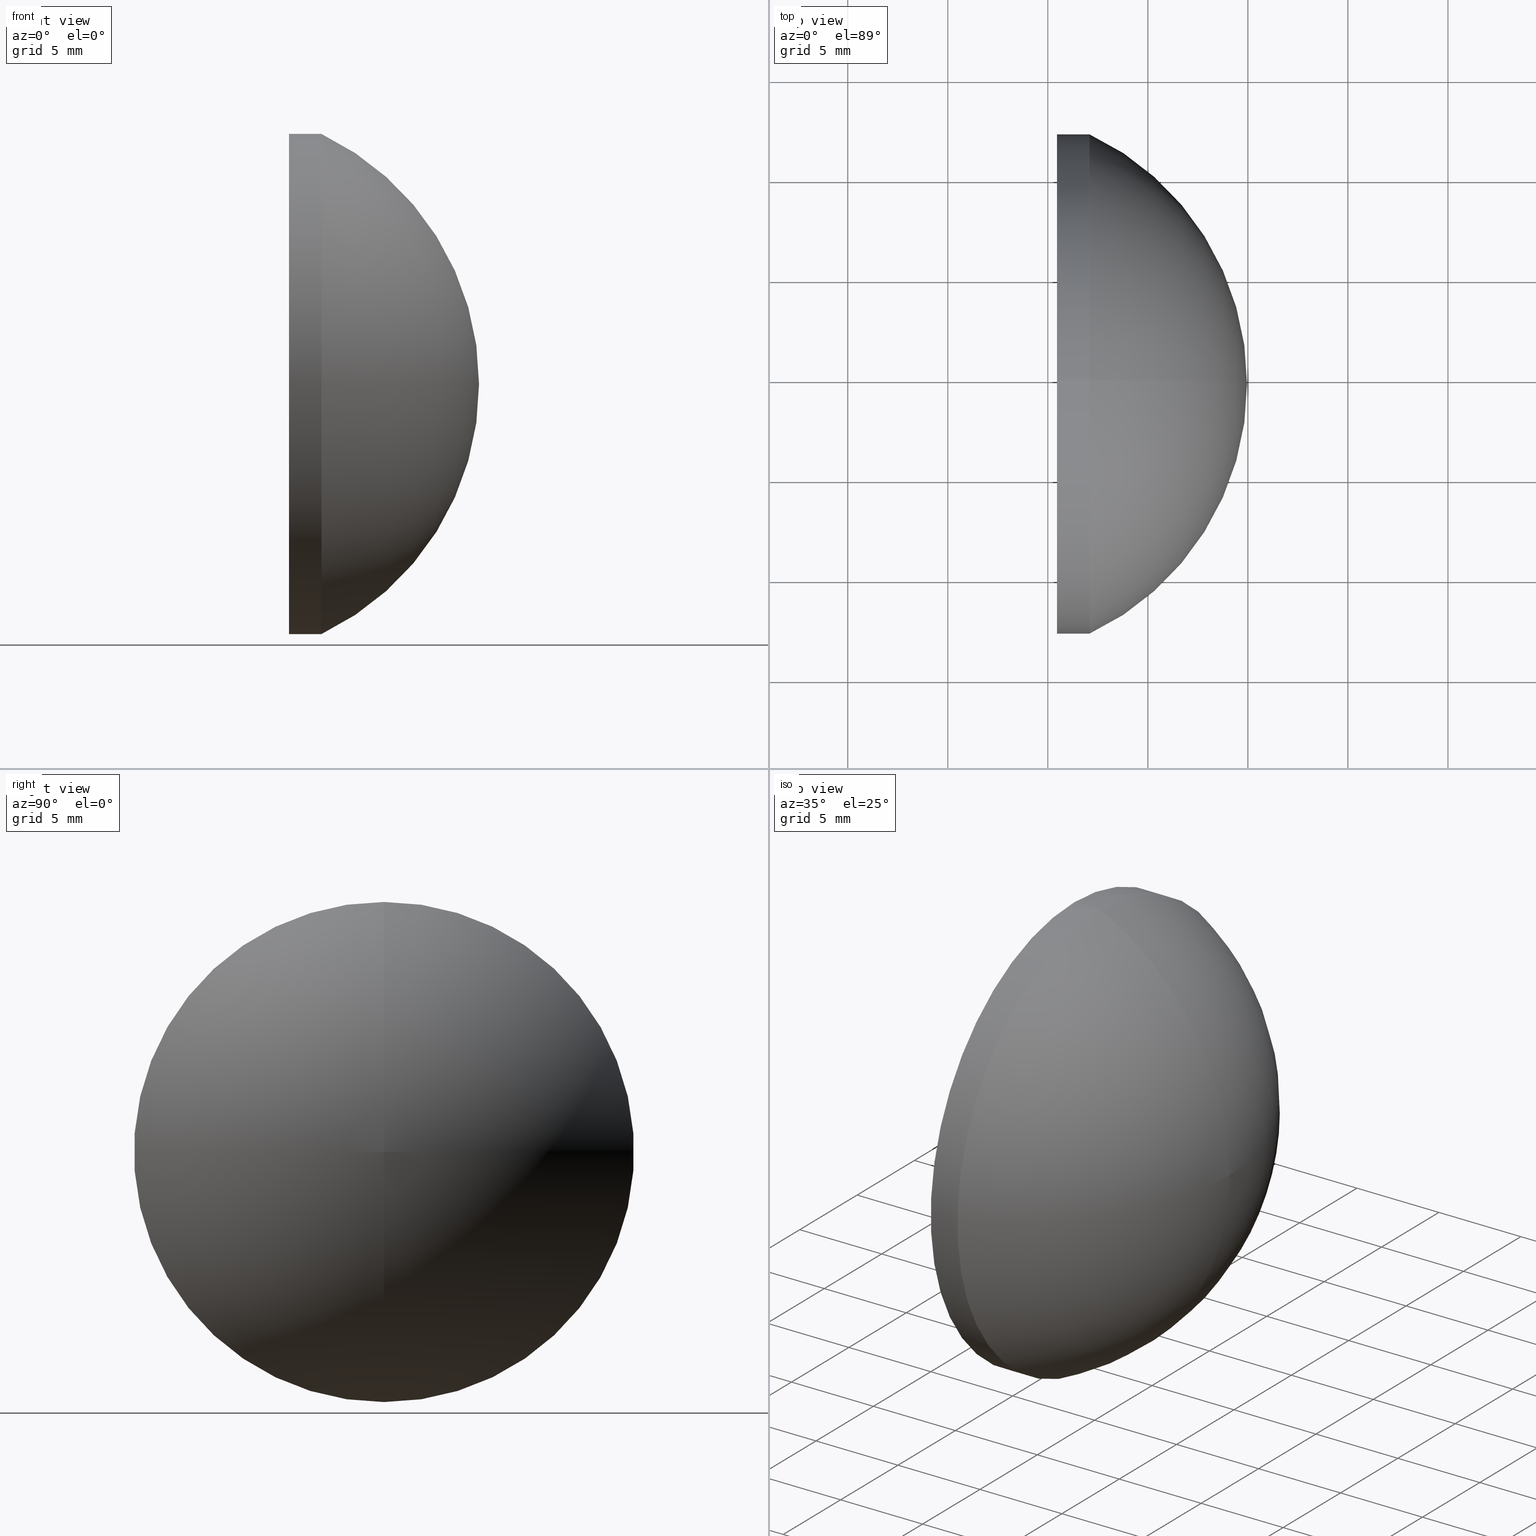
[diagram: canonical four-view strip — front | top / right | iso, engineering-drawing reading convention]
A machine part, canonical four-view strip (front | top / right | iso — engineering-drawing reading convention). The complete STEP part file that produces these views, byte-faithful:
ISO-10303-21;
HEADER;
FILE_DESCRIPTION (( 'STEP AP214' ),
    '1' );
FILE_NAME ('100123.STEP',
    '2019-05-14T06:32:05',
    ( '' ),
    ( '' ),
    'SwSTEP 2.0',
    'SolidWorks 2016',
    '' );
FILE_SCHEMA (( 'AUTOMOTIVE_DESIGN' ));
ENDSEC;

DATA;
#1 = DIRECTION ( 'NONE',  ( -1.000000000000000000, -0.0000000000000000000, -0.0000000000000000000 ) ) ;
#2 = CIRCLE ( 'NONE', #55, 12.50000000000001100 ) ;
#3 = CARTESIAN_POINT ( 'NONE',  ( 492.0819735120367100, 124.7029078037479600, 0.0000000000000000000 ) ) ;
#4 =( LENGTH_UNIT ( ) NAMED_UNIT ( * ) SI_UNIT ( .MILLI., .METRE. ) );
#5 = ADVANCED_FACE ( 'NONE', ( #67 ), #132, .T. ) ;
#6 = DIRECTION ( 'NONE',  ( 0.0000000000000000000, 0.0000000000000000000, 1.000000000000000000 ) ) ;
#7 = ORIENTED_EDGE ( 'NONE', *, *, #161, .F. ) ;
#8 = FACE_OUTER_BOUND ( 'NONE', #122, .T. ) ;
#9 = DIRECTION ( 'NONE',  ( -1.000000000000000000, -0.0000000000000000000, -0.0000000000000000000 ) ) ;
#10 = ORIENTED_EDGE ( 'NONE', *, *, #88, .T. ) ;
#11 = APPLICATION_CONTEXT ( 'automotive_design' ) ;
#12 = CLOSED_SHELL ( 'NONE', ( #157, #141, #95, #5, #71 ) ) ;
#13 = STYLED_ITEM ( 'NONE', ( #28 ), #118 ) ;
#14 = ORIENTED_EDGE ( 'NONE', *, *, #134, .F. ) ;
#15 = COLOUR_RGB ( '',1.000000000000000000, 1.000000000000000000, 1.000000000000000000 ) ;
#16 = PRODUCT_DEFINITION_FORMATION_WITH_SPECIFIED_SOURCE ( '�κ�', '', #66, .NOT_KNOWN. ) ;
#17 = CYLINDRICAL_SURFACE ( 'NONE', #116, 12.50000000000001100 ) ;
#18 = AXIS2_PLACEMENT_3D ( 'NONE', #121, #136, #149 ) ;
#19 = ORIENTED_EDGE ( 'NONE', *, *, #100, .F. ) ;
#20 = MECHANICAL_DESIGN_GEOMETRIC_PRESENTATION_REPRESENTATION (  '', ( #13 ), #110 ) ;
#21 = CARTESIAN_POINT ( 'NONE',  ( 490.4569735120367100, 124.7029078037479600, 12.50000000000001100 ) ) ;
#22 = DIRECTION ( 'NONE',  ( 0.0000000000000000000, 0.0000000000000000000, 1.000000000000000000 ) ) ;
#23 = FILL_AREA_STYLE ('',( #152 ) ) ;
#24 = CIRCLE ( 'NONE', #27, 12.50000000000001100 ) ;
#25 = DIRECTION ( 'NONE',  ( -1.000000000000000000, -0.0000000000000000000, -0.0000000000000000000 ) ) ;
#26 = FILL_AREA_STYLE ('',( #96 ) ) ;
#27 = AXIS2_PLACEMENT_3D ( 'NONE', #3, #51, #142 ) ;
#28 = PRESENTATION_STYLE_ASSIGNMENT (( #34 ) ) ;
#29 = UNCERTAINTY_MEASURE_WITH_UNIT (LENGTH_MEASURE( 1.000000000000000100E-005 ), #4, 'distance_accuracy_value', 'NONE');
#30 = ORIENTED_EDGE ( 'NONE', *, *, #88, .F. ) ;
#31 = TOROIDAL_SURFACE ( 'NONE', #53, 0.01775236966823634500, 13.82996794970070600 ) ;
#32 = DIRECTION ( 'NONE',  ( 0.0000000000000000000, 0.0000000000000000000, 1.000000000000000000 ) ) ;
#33 = CARTESIAN_POINT ( 'NONE',  ( 490.4569735120367100, 124.7029078037479600, 0.0000000000000000000 ) ) ;
#34 = SURFACE_STYLE_USAGE ( .BOTH. , #112 ) ;
#35 = DIRECTION ( 'NONE',  ( 0.0000000000000000000, 0.0000000000000000000, -1.000000000000000000 ) ) ;
#36 =( NAMED_UNIT ( * ) PLANE_ANGLE_UNIT ( ) SI_UNIT ( $, .RADIAN. ) );
#37 = LINE ( 'NONE', #61, #63 ) ;
#38 = APPLICATION_PROTOCOL_DEFINITION ( 'draft international standard', 'automotive_design', 1998, #98 ) ;
#39 = PRODUCT_RELATED_PRODUCT_CATEGORY ( 'part', '', ( #66 ) ) ;
#40 = APPLICATION_PROTOCOL_DEFINITION ( 'draft international standard', 'automotive_design', 1998, #11 ) ;
#41 = FACE_OUTER_BOUND ( 'NONE', #107, .T. ) ;
#42 = ORIENTED_EDGE ( 'NONE', *, *, #153, .T. ) ;
#43 = PRESENTATION_LAYER_ASSIGNMENT (  '', '', ( #13 ) ) ;
#44 = VERTEX_POINT ( 'NONE', #68 ) ;
#45 = DIRECTION ( 'NONE',  ( -1.000000000000000000, -0.0000000000000000000, -0.0000000000000000000 ) ) ;
#46 = ORIENTED_EDGE ( 'NONE', *, *, #161, .T. ) ;
#47 =( LENGTH_UNIT ( ) NAMED_UNIT ( * ) SI_UNIT ( .MILLI., .METRE. ) );
#48 = EDGE_CURVE ( 'NONE', #76, #44, #65, .T. ) ;
#49 = DIRECTION ( 'NONE',  ( -1.000000000000000000, -0.0000000000000000000, -0.0000000000000000000 ) ) ;
#50 = DIRECTION ( 'NONE',  ( 0.0000000000000000000, 0.0000000000000000000, 1.000000000000000000 ) ) ;
#51 = DIRECTION ( 'NONE',  ( -1.000000000000000000, -0.0000000000000000000, -0.0000000000000000000 ) ) ;
#52 =( NAMED_UNIT ( * ) SI_UNIT ( $, .STERADIAN. ) SOLID_ANGLE_UNIT ( ) );
#53 = AXIS2_PLACEMENT_3D ( 'NONE', #109, #45, #163 ) ;
#54 = CIRCLE ( 'NONE', #82, 12.50000000000001100 ) ;
#55 = AXIS2_PLACEMENT_3D ( 'NONE', #69, #1, #32 ) ;
#56 = PLANE ( 'NONE',  #18 ) ;
#57 =( GEOMETRIC_REPRESENTATION_CONTEXT ( 3 ) GLOBAL_UNCERTAINTY_ASSIGNED_CONTEXT ( ( #78 ) ) GLOBAL_UNIT_ASSIGNED_CONTEXT ( ( #158, #83, #114 ) ) REPRESENTATION_CONTEXT ( 'NONE', 'WORKASPACE' ) );
#58 = PRODUCT_DEFINITION_SHAPE ( 'NONE', 'NONE',  #164 ) ;
#59 = ADVANCED_BREP_SHAPE_REPRESENTATION ( '100123', ( #118, #87 ), #57 ) ;
#60 = CARTESIAN_POINT ( 'NONE',  ( 486.1270169559545600, 124.7029078037479600, 0.0000000000000000000 ) ) ;
#61 = CARTESIAN_POINT ( 'NONE',  ( 487.9520244924638100, 124.7029078037479600, -12.50000000000001100 ) ) ;
#62 = SURFACE_STYLE_FILL_AREA ( #23 ) ;
#63 = VECTOR ( 'NONE', #9, 1000.000000000000000 ) ;
#64 = PRESENTATION_LAYER_ASSIGNMENT (  '', '', ( #137 ) ) ;
#65 = CIRCLE ( 'NONE', #106, 13.82996794970070600 ) ;
#66 = PRODUCT ( '100123', '100123', '', ( #85 ) ) ;
#67 = FACE_OUTER_BOUND ( 'NONE', #97, .T. ) ;
#68 = CARTESIAN_POINT ( 'NONE',  ( 492.0819735120367100, 124.7029078037479600, -12.50000000000000900 ) ) ;
#69 = CARTESIAN_POINT ( 'NONE',  ( 492.0819735120367100, 124.7029078037479600, 0.0000000000000000000 ) ) ;
#70 = DIRECTION ( 'NONE',  ( -0.0000000000000000000, 1.000000000000000000, 1.224646799147353200E-016 ) ) ;
#71 = ADVANCED_FACE ( 'NONE', ( #8 ), #56, .F. ) ;
#72 = ORIENTED_EDGE ( 'NONE', *, *, #153, .F. ) ;
#73 = DIRECTION ( 'NONE',  ( 0.0000000000000000000, 0.0000000000000000000, 1.000000000000000000 ) ) ;
#74 = ORIENTED_EDGE ( 'NONE', *, *, #77, .F. ) ;
#75 = AXIS2_PLACEMENT_3D ( 'NONE', #60, #93, #22 ) ;
#76 = VERTEX_POINT ( 'NONE', #123 ) ;
#77 = EDGE_CURVE ( 'NONE', #103, #105, #147, .T. ) ;
#78 = UNCERTAINTY_MEASURE_WITH_UNIT (LENGTH_MEASURE( 1.000000000000000100E-005 ), #158, 'distance_accuracy_value', 'NONE');
#79 = ORIENTED_EDGE ( 'NONE', *, *, #100, .T. ) ;
#80 = CARTESIAN_POINT ( 'NONE',  ( 490.4569735120367100, 124.7029078037479600, -12.50000000000001100 ) ) ;
#81 = CARTESIAN_POINT ( 'NONE',  ( 0.0000000000000000000, 0.0000000000000000000, 0.0000000000000000000 ) ) ;
#82 = AXIS2_PLACEMENT_3D ( 'NONE', #117, #25, #115 ) ;
#83 =( NAMED_UNIT ( * ) PLANE_ANGLE_UNIT ( ) SI_UNIT ( $, .RADIAN. ) );
#84 = ORIENTED_EDGE ( 'NONE', *, *, #156, .F. ) ;
#85 = PRODUCT_CONTEXT ( 'NONE', #11, 'mechanical' ) ;
#86 = UNCERTAINTY_MEASURE_WITH_UNIT (LENGTH_MEASURE( 1.000000000000000100E-005 ), #47, 'distance_accuracy_value', 'NONE');
#87 = AXIS2_PLACEMENT_3D ( 'NONE', #81, #73, #119 ) ;
#88 = EDGE_CURVE ( 'NONE', #76, #101, #165, .T. ) ;
#89 = MECHANICAL_DESIGN_GEOMETRIC_PRESENTATION_REPRESENTATION (  '', ( #137 ), #104 ) ;
#90 =( NAMED_UNIT ( * ) PLANE_ANGLE_UNIT ( ) SI_UNIT ( $, .RADIAN. ) );
#91 = DIRECTION ( 'NONE',  ( 0.0000000000000000000, 0.0000000000000000000, 1.000000000000000000 ) ) ;
#92 = CARTESIAN_POINT ( 'NONE',  ( 492.0819735120367100, 124.7029078037479600, 12.50000000000000900 ) ) ;
#93 = DIRECTION ( 'NONE',  ( -1.000000000000000000, -0.0000000000000000000, -0.0000000000000000000 ) ) ;
#94 = FACE_OUTER_BOUND ( 'NONE', #120, .T. ) ;
#95 = ADVANCED_FACE ( 'NONE', ( #41 ), #31, .T. ) ;
#96 = FILL_AREA_STYLE_COLOUR ( '', #15 ) ;
#97 = EDGE_LOOP ( 'NONE', ( #19, #42, #46, #84 ) ) ;
#98 = APPLICATION_CONTEXT ( 'automotive_design' ) ;
#99 = CARTESIAN_POINT ( 'NONE',  ( 487.9520244924638100, 124.7029078037479600, 12.50000000000001100 ) ) ;
#100 = EDGE_CURVE ( 'NONE', #44, #105, #37, .T. ) ;
#101 = VERTEX_POINT ( 'NONE', #92 ) ;
#102 = SHAPE_DEFINITION_REPRESENTATION ( #58, #59 ) ;
#103 = VERTEX_POINT ( 'NONE', #21 ) ;
#104 =( GEOMETRIC_REPRESENTATION_CONTEXT ( 3 ) GLOBAL_UNCERTAINTY_ASSIGNED_CONTEXT ( ( #29 ) ) GLOBAL_UNIT_ASSIGNED_CONTEXT ( ( #4, #36, #52 ) ) REPRESENTATION_CONTEXT ( 'NONE', 'WORKASPACE' ) );
#105 = VERTEX_POINT ( 'NONE', #80 ) ;
#106 = AXIS2_PLACEMENT_3D ( 'NONE', #125, #70, #91 ) ;
#107 = EDGE_LOOP ( 'NONE', ( #146, #10, #72 ) ) ;
#108 =( NAMED_UNIT ( * ) SI_UNIT ( $, .STERADIAN. ) SOLID_ANGLE_UNIT ( ) );
#109 = CARTESIAN_POINT ( 'NONE',  ( 486.1270169559545600, 124.7029078037479600, 0.0000000000000000000 ) ) ;
#110 =( GEOMETRIC_REPRESENTATION_CONTEXT ( 3 ) GLOBAL_UNCERTAINTY_ASSIGNED_CONTEXT ( ( #86 ) ) GLOBAL_UNIT_ASSIGNED_CONTEXT ( ( #47, #90, #108 ) ) REPRESENTATION_CONTEXT ( 'NONE', 'WORKASPACE' ) );
#111 = ORIENTED_EDGE ( 'NONE', *, *, #77, .T. ) ;
#112 = SURFACE_SIDE_STYLE ('',( #62 ) ) ;
#113 = SURFACE_STYLE_FILL_AREA ( #26 ) ;
#114 =( NAMED_UNIT ( * ) SI_UNIT ( $, .STERADIAN. ) SOLID_ANGLE_UNIT ( ) );
#115 = DIRECTION ( 'NONE',  ( 0.0000000000000000000, 0.0000000000000000000, 1.000000000000000000 ) ) ;
#116 = AXIS2_PLACEMENT_3D ( 'NONE', #166, #138, #6 ) ;
#117 = CARTESIAN_POINT ( 'NONE',  ( 490.4569735120367100, 124.7029078037479600, 0.0000000000000000000 ) ) ;
#118 = MANIFOLD_SOLID_BREP ( '��ת2', #12 ) ;
#119 = DIRECTION ( 'NONE',  ( 1.000000000000000000, 0.0000000000000000000, 0.0000000000000000000 ) ) ;
#120 = EDGE_LOOP ( 'NONE', ( #30, #135, #14 ) ) ;
#121 = CARTESIAN_POINT ( 'NONE',  ( 490.4569735120367100, 124.7029078037479600, 0.0000000000000000000 ) ) ;
#122 = EDGE_LOOP ( 'NONE', ( #111, #143 ) ) ;
#123 = CARTESIAN_POINT ( 'NONE',  ( 499.9569735120367100, 124.7029078037479600, 0.0000000000000000000 ) ) ;
#124 = DIRECTION ( 'NONE',  ( 0.0000000000000000000, -1.000000000000000000, 0.0000000000000000000 ) ) ;
#125 = CARTESIAN_POINT ( 'NONE',  ( 486.1270169559545600, 124.7029078037479600, -0.01775236966823634500 ) ) ;
#126 = FACE_OUTER_BOUND ( 'NONE', #160, .T. ) ;
#127 = LINE ( 'NONE', #99, #129 ) ;
#128 = SURFACE_SIDE_STYLE ('',( #113 ) ) ;
#129 = VECTOR ( 'NONE', #144, 1000.000000000000000 ) ;
#130 = COLOUR_RGB ( '',1.000000000000000000, 1.000000000000000000, 1.000000000000000000 ) ;
#131 = AXIS2_PLACEMENT_3D ( 'NONE', #151, #154, #50 ) ;
#132 = CYLINDRICAL_SURFACE ( 'NONE', #131, 12.50000000000001100 ) ;
#133 = AXIS2_PLACEMENT_3D ( 'NONE', #140, #124, #35 ) ;
#134 = EDGE_CURVE ( 'NONE', #101, #44, #2, .T. ) ;
#135 = ORIENTED_EDGE ( 'NONE', *, *, #48, .T. ) ;
#136 = DIRECTION ( 'NONE',  ( 1.000000000000000000, 0.0000000000000000000, 0.0000000000000000000 ) ) ;
#137 = STYLED_ITEM ( 'NONE', ( #139 ), #59 ) ;
#138 = DIRECTION ( 'NONE',  ( -1.000000000000000000, -0.0000000000000000000, -0.0000000000000000000 ) ) ;
#139 = PRESENTATION_STYLE_ASSIGNMENT (( #159 ) ) ;
#140 = CARTESIAN_POINT ( 'NONE',  ( 486.1270169559545600, 124.7029078037479600, 0.01775236966823634500 ) ) ;
#141 = ADVANCED_FACE ( 'NONE', ( #94 ), #155, .T. ) ;
#142 = DIRECTION ( 'NONE',  ( 0.0000000000000000000, 0.0000000000000000000, 1.000000000000000000 ) ) ;
#143 = ORIENTED_EDGE ( 'NONE', *, *, #156, .T. ) ;
#144 = DIRECTION ( 'NONE',  ( -1.000000000000000000, -0.0000000000000000000, -0.0000000000000000000 ) ) ;
#145 = ORIENTED_EDGE ( 'NONE', *, *, #134, .T. ) ;
#146 = ORIENTED_EDGE ( 'NONE', *, *, #48, .F. ) ;
#147 = CIRCLE ( 'NONE', #162, 12.50000000000001100 ) ;
#148 = PRODUCT_DEFINITION_CONTEXT ( 'detailed design', #98, 'design' ) ;
#149 = DIRECTION ( 'NONE',  ( 0.0000000000000000000, 0.0000000000000000000, -1.000000000000000000 ) ) ;
#150 = DIRECTION ( 'NONE',  ( 0.0000000000000000000, 0.0000000000000000000, 1.000000000000000000 ) ) ;
#151 = CARTESIAN_POINT ( 'NONE',  ( 487.9520244924638100, 124.7029078037479600, 0.0000000000000000000 ) ) ;
#152 = FILL_AREA_STYLE_COLOUR ( '', #130 ) ;
#153 = EDGE_CURVE ( 'NONE', #44, #101, #24, .T. ) ;
#154 = DIRECTION ( 'NONE',  ( -1.000000000000000000, -0.0000000000000000000, -0.0000000000000000000 ) ) ;
#155 = TOROIDAL_SURFACE ( 'NONE', #75, 0.01775236966823634500, 13.82996794970070600 ) ;
#156 = EDGE_CURVE ( 'NONE', #105, #103, #54, .T. ) ;
#157 = ADVANCED_FACE ( 'NONE', ( #126 ), #17, .T. ) ;
#158 =( LENGTH_UNIT ( ) NAMED_UNIT ( * ) SI_UNIT ( .MILLI., .METRE. ) );
#159 = SURFACE_STYLE_USAGE ( .BOTH. , #128 ) ;
#160 = EDGE_LOOP ( 'NONE', ( #145, #79, #74, #7 ) ) ;
#161 = EDGE_CURVE ( 'NONE', #101, #103, #127, .T. ) ;
#162 = AXIS2_PLACEMENT_3D ( 'NONE', #33, #49, #150 ) ;
#163 = DIRECTION ( 'NONE',  ( 0.0000000000000000000, 0.0000000000000000000, 1.000000000000000000 ) ) ;
#164 = PRODUCT_DEFINITION ( 'δ֪', '', #16, #148 ) ;
#165 = CIRCLE ( 'NONE', #133, 13.82996794970070600 ) ;
#166 = CARTESIAN_POINT ( 'NONE',  ( 487.9520244924638100, 124.7029078037479600, 0.0000000000000000000 ) ) ;
ENDSEC;
END-ISO-10303-21;
